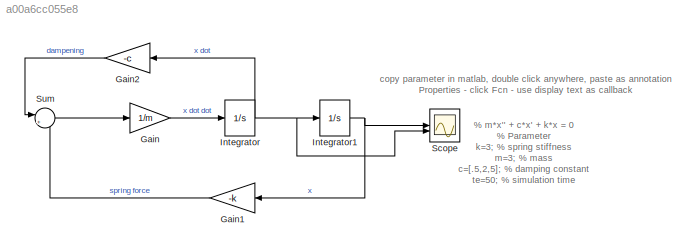
MODEL slx_a00a6cc055e8
KIND model
CONFIG AbsTol = auto
CONFIG EnableMultiTasking = on
CONFIG FixedStep = auto
CONFIG MaxStep = auto
CONFIG MinStep = auto
CONFIG RelTol = 1e-3
CONFIG SampleTimeConstraint = Unconstrained
CONFIG SolverName = VariableStepAuto
CONFIG StartTime = 0.0
CONFIG StopTime = te
BLOCK [Gain] Gain
  Gain = 1/m
BLOCK [Gain] Gain1
  Gain = -k
  NameLocation = top
BLOCK [Gain] Gain2
  Gain = -c
  NameLocation = top
BLOCK [Integrator] Integrator
  InitialCondition = x0(2)
BLOCK [Integrator] Integrator1
  InitialCondition = x0(1)
BLOCK [Scope] Scope
  Floating = off
  NumInputPorts = 2
  ScopeSpecificationString = Simulink.scopes.TimeScopeBlockCfg('CurrentConfiguration', extmgr.ConfigurationSet(extmgr.Configuration('Core','General UI',true),extmgr.Configuration('Core','Source UI',true),extmgr.Configuration('Sources','WiredSimulink',true,'DataLogging',true),extmgr.Configuration('Visuals','Time Domain',true,'SerializedDisplays',{struct('MinYLimReal','-1.11824','MaxYLimReal','1.23536','YLabelReal','','MinYLimM...<+1540ch>
BLOCK [Sum] Sum
  Inputs = |++
ANNOTATION (root): % m*x'' + c*x' + k*x = 0 % Parameter k=3; % spring stiffness m=3; % mass c=[.5,2,5]; % damping constant te=50; % simulation time x0=[1 0]; % initial conditions for x(1)=x(t) and x(2)=x'(t)
ANNOTATION (root): copy parameter in matlab, double click anywhere, paste as annotation Properties - click Fcn - use display text as callback
LINE Gain1:1 -> Sum:2
LINE Gain2:1 -> Sum:1
LINE Gain:1 -> Integrator:1
NET Integrator1:1 -> Gain1:1, Scope:1
NET Integrator:1 -> Gain2:1, Integrator1:1, Scope:2
LINE Sum:1 -> Gain:1
note: NET lines group one-source signal fan-out (src -> all destinations, sorted); 1:1 wires keep LINE
